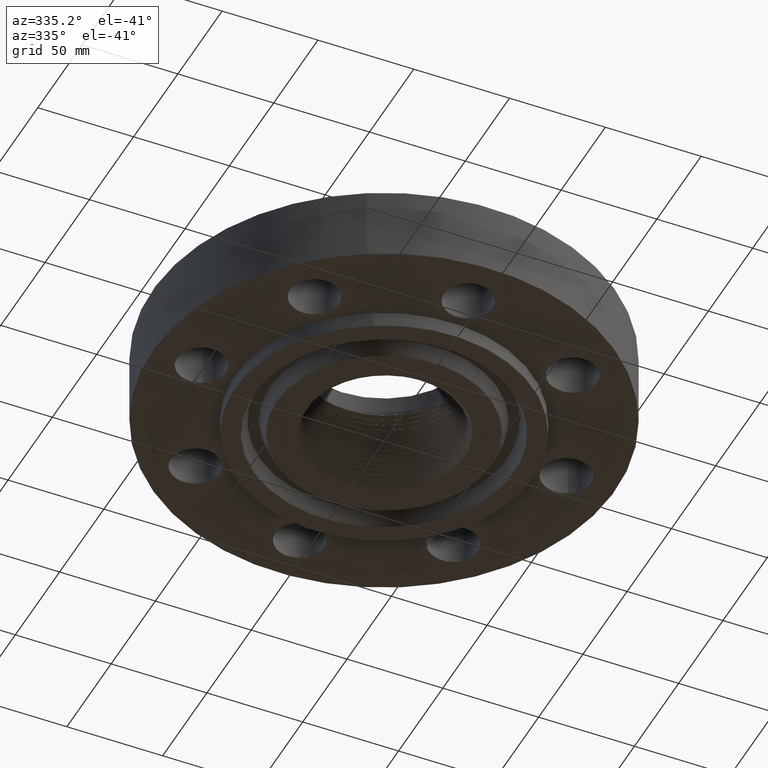
[diagram: clean part render]
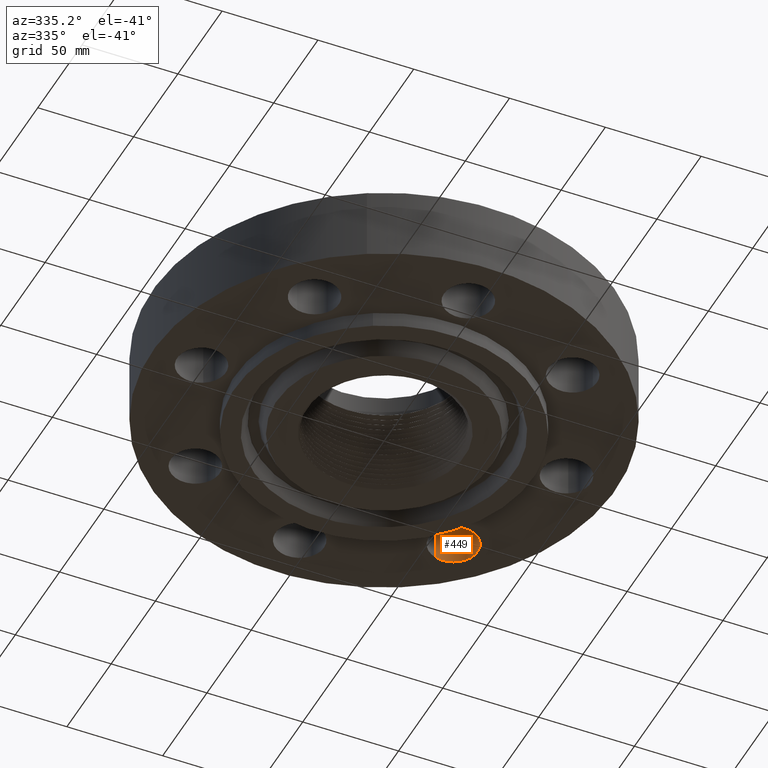
[diagram: same view with one face highlighted and labeled with its STEP entity id]
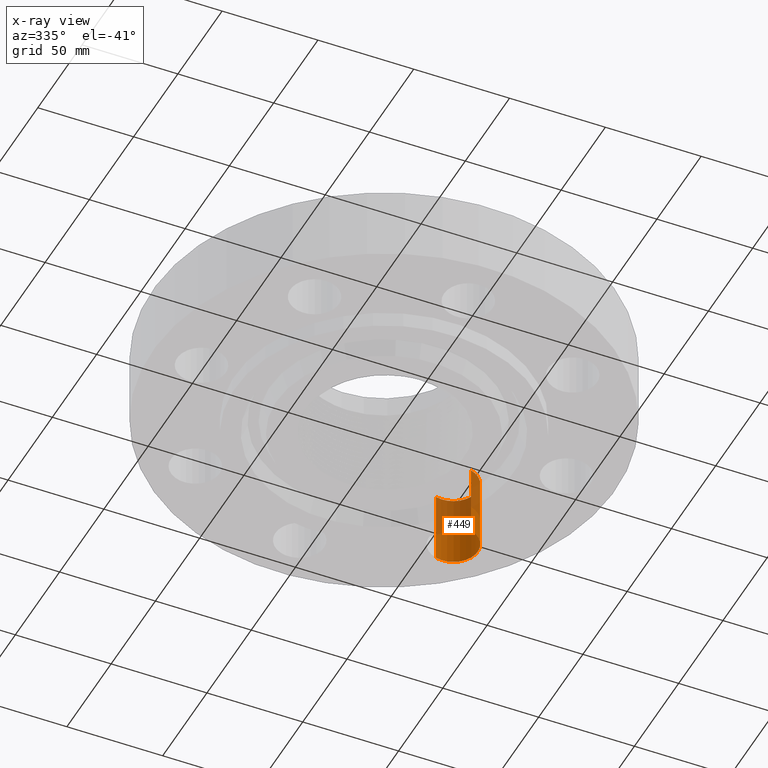
[diagram: x-ray of the same camera — body ghosted, the highlighted face saturated]
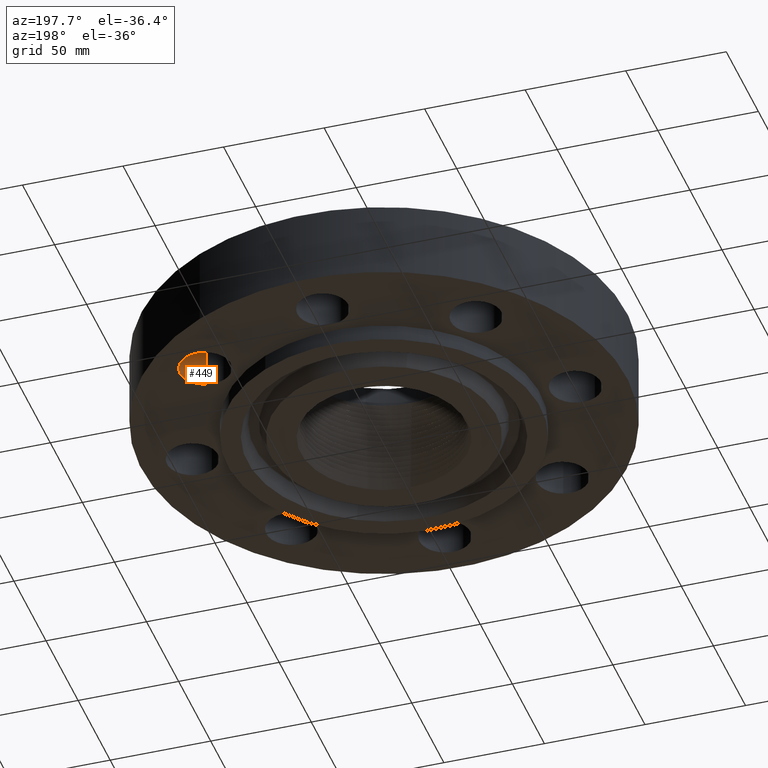
[diagram: same view with one face highlighted and labeled with its STEP entity id]
A machine part, auxiliary view. The second image highlights one B-rep face of the part: STEP entity #449.
The next image is the same camera in x-ray: the body ghosted, the highlighted face saturated — about 49% of this face is hidden behind the body in this view.
A second angle (auxiliary view) of the same face is appended — the face is thin or edge-on in the first view.
In plain terms, the highlighted cylindrical surface (edge-blend (fillet) strip) has radius 12.7 mm, axis along (0, -0, -1).
Its self-contained STEP definition (entity closure, byte-faithful):
#396=AXIS2_PLACEMENT_3D('Cylinder Axis2P3D',#393,#394,#395) ;
#435=AXIS2_PLACEMENT_3D('Circle Axis2P3D',#433,#434,$) ;
#440=AXIS2_PLACEMENT_3D('Circle Axis2P3D',#438,#439,$) ;
#393=CARTESIAN_POINT('Axis2P3D Location',(2.65165042946,2.65165042946,1.49606299213)) ;
#398=CARTESIAN_POINT('Line Origine',(2.79242019503,2.17187561447,0.750000000003)) ;
#402=CARTESIAN_POINT('Vertex',(2.79242019503,2.17187561447,0.)) ;
#404=CARTESIAN_POINT('Vertex',(2.79242019503,2.17187561447,1.50000000001)) ;
#411=CARTESIAN_POINT('Vertex',(2.51088066389,3.13142524445,0.)) ;
#414=CARTESIAN_POINT('Line Origine',(2.51088066389,3.13142524445,0.750000000003)) ;
#418=CARTESIAN_POINT('Vertex',(2.51088066389,3.13142524445,1.50000000001)) ;
#433=CARTESIAN_POINT('Axis2P3D Location',(2.65165042946,2.65165042946,0.)) ;
#438=CARTESIAN_POINT('Axis2P3D Location',(2.65165042946,2.65165042946,1.50000000001)) ;
#394=DIRECTION('Axis2P3D Direction',(0.,-0.,-0.0393700787402)) ;
#395=DIRECTION('Axis2P3D XDirection',(-0.0110842335096,0.0377775444876,-0.)) ;
#399=DIRECTION('Vector Direction',(0.,0.,-0.0393700787402)) ;
#415=DIRECTION('Vector Direction',(0.,0.,-0.0393700787402)) ;
#434=DIRECTION('Axis2P3D Direction',(0.,-0.,-0.0393700787402)) ;
#439=DIRECTION('Axis2P3D Direction',(0.,-0.,-0.0393700787402)) ;
#400=VECTOR('Line Direction',#399,0.0393700787402) ;
#416=VECTOR('Line Direction',#415,0.0393700787402) ;
#444=ORIENTED_EDGE('',*,*,#420,.F.) ;
#445=ORIENTED_EDGE('',*,*,#437,.T.) ;
#446=ORIENTED_EDGE('',*,*,#406,.T.) ;
#447=ORIENTED_EDGE('',*,*,#442,.F.) ;
#449=ADVANCED_FACE('PartBody',(#448),#397,.F.) ;
#436=CIRCLE('generated circle',#435,0.500000000002) ;
#441=CIRCLE('generated circle',#440,0.500000000002) ;
#397=CYLINDRICAL_SURFACE('generated cylinder',#396,0.500000000002) ;
#406=EDGE_CURVE('',#403,#405,#401,.F.) ;
#420=EDGE_CURVE('',#412,#419,#417,.F.) ;
#437=EDGE_CURVE('',#412,#403,#436,.T.) ;
#442=EDGE_CURVE('',#419,#405,#441,.T.) ;
#443=EDGE_LOOP('',(#444,#445,#446,#447)) ;
#448=FACE_OUTER_BOUND('',#443,.T.) ;
#401=LINE('Line',#398,#400) ;
#417=LINE('Line',#414,#416) ;
#403=VERTEX_POINT('',#402) ;
#405=VERTEX_POINT('',#404) ;
#412=VERTEX_POINT('',#411) ;
#419=VERTEX_POINT('',#418) ;